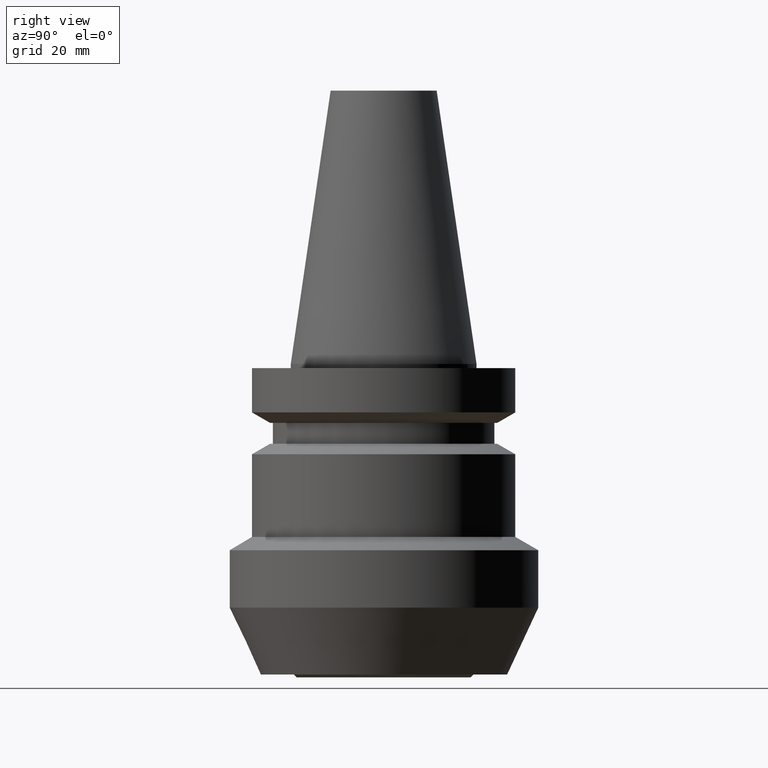
[diagram: clean part render]
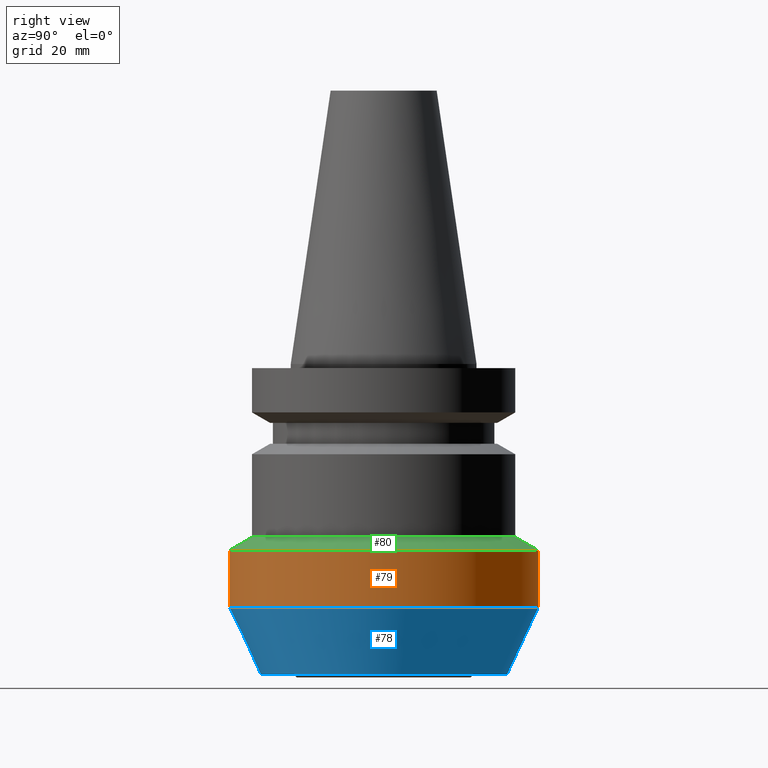
[diagram: same view with three faces highlighted in distinct colors, each labeled with its STEP entity id]
A machine part, right view with three faces highlighted in distinct colors.
Their STEP definitions:

[orange] entity #79 — the highlighted cylindrical surface (bore or boss wall) has radius 37 mm, axis along (0, 0, -1).
#79=ADVANCED_FACE('',(#104,#105),#106,.T.);
#104=FACE_BOUND('',#153,.T.);
#105=FACE_BOUND('',#154,.T.);
#106=CYLINDRICAL_SURFACE('',#155,37.0000000000031);
#153=EDGE_LOOP('',(#210));
#154=EDGE_LOOP('',(#211));
#155=AXIS2_PLACEMENT_3D('',#212,#213,#214);
#210=ORIENTED_EDGE('',*,*,#278,.F.);
#211=ORIENTED_EDGE('',*,*,#277,.T.);
#212=CARTESIAN_POINT('',(3.14979960878464E-015,1.17003556009431E-015,-51.4401313256631));
#213=DIRECTION('',(6.12323399573677E-017,2.27455787911362E-017,-1.0));
#214=DIRECTION('',(-6.21991774383436E-033,1.0,2.27455787911362E-017));
#277=EDGE_CURVE('',#296,#296,#297,.T.);
#278=EDGE_CURVE('',#298,#298,#299,.T.);
#296=VERTEX_POINT('',#328);
#297=CIRCLE('',#329,37.0000000000041);
#298=VERTEX_POINT('',#330);
#299=CIRCLE('',#331,37.0000000000021);
#328=CARTESIAN_POINT('',(3.57080847755333E-015,37.0000000000041,-58.3157279313426));
#329=AXIS2_PLACEMENT_3D('',#363,#364,#365);
#330=CARTESIAN_POINT('',(2.72879074001595E-015,37.0000000000021,-44.5645347199835));
#331=AXIS2_PLACEMENT_3D('',#366,#367,#368);
#363=CARTESIAN_POINT('',(3.57080847755333E-015,1.32642498442487E-015,-58.3157279313426));
#364=DIRECTION('',(-6.12323399573676E-017,-2.27455787911356E-017,1.0));
#365=DIRECTION('',(-6.21991774383418E-033,1.0,2.27455787911356E-017));
#366=CARTESIAN_POINT('',(2.72879074001595E-015,1.01364613576375E-015,-44.5645347199835));
#367=DIRECTION('',(-6.12323399573677E-017,-2.27455787911369E-017,1.0));
#368=DIRECTION('',(-6.21991774383453E-033,1.0,2.27455787911369E-017));

[blue] entity #78 — the highlighted conical surface has half-angle 25 deg.
#78=ADVANCED_FACE('',(#101,#102),#103,.T.);
#101=FACE_BOUND('',#150,.T.);
#102=FACE_BOUND('',#151,.T.);
#103=CONICAL_SURFACE('',#152,33.2731047821269,0.436332312998577);
#150=EDGE_LOOP('',(#205));
#151=EDGE_LOOP('',(#206));
#152=AXIS2_PLACEMENT_3D('',#207,#208,#209);
#205=ORIENTED_EDGE('',*,*,#277,.F.);
#206=ORIENTED_EDGE('',*,*,#276,.T.);
#207=CARTESIAN_POINT('',(4.06019892820447E-015,1.50821566991338E-015,-66.3080805180944));
#208=DIRECTION('',(-6.12323399573677E-017,-2.27455787911278E-017,1.0));
#209=DIRECTION('',(-6.21991774382596E-033,1.0,2.27455787911278E-017));
#276=EDGE_CURVE('',#294,#294,#295,.T.);
#277=EDGE_CURVE('',#296,#296,#297,.T.);
#294=VERTEX_POINT('',#326);
#295=CIRCLE('',#327,29.5462095642497);
#296=VERTEX_POINT('',#328);
#297=CIRCLE('',#329,37.0000000000041);
#326=CARTESIAN_POINT('',(4.5495893788556E-015,29.5462095642497,-74.3004331048462));
#327=AXIS2_PLACEMENT_3D('',#360,#361,#362);
#328=CARTESIAN_POINT('',(3.57080847755333E-015,37.0000000000041,-58.3157279313426));
#329=AXIS2_PLACEMENT_3D('',#363,#364,#365);
#360=CARTESIAN_POINT('',(4.54958937885559E-015,1.69000635540189E-015,-74.3004331048462));
#361=DIRECTION('',(-6.12323399573677E-017,-2.27455787911181E-017,1.0));
#362=DIRECTION('',(-6.21991774383995E-033,1.0,2.2745578791118E-017));
#363=CARTESIAN_POINT('',(3.57080847755333E-015,1.32642498442487E-015,-58.3157279313426));
#364=DIRECTION('',(-6.12323399573676E-017,-2.27455787911356E-017,1.0));
#365=DIRECTION('',(-6.21991774383418E-033,1.0,2.27455787911356E-017));

[green] entity #80 — the highlighted conical surface has half-angle 60 deg.
#80=ADVANCED_FACE('',(#107,#108),#109,.T.);
#107=FACE_BOUND('',#156,.T.);
#108=FACE_BOUND('',#157,.T.);
#109=CONICAL_SURFACE('',#158,34.2500000000004,1.04719755119663);
#156=EDGE_LOOP('',(#215));
#157=EDGE_LOOP('',(#216));
#158=AXIS2_PLACEMENT_3D('',#217,#218,#219);
#215=ORIENTED_EDGE('',*,*,#279,.F.);
#216=ORIENTED_EDGE('',*,*,#278,.T.);
#217=CARTESIAN_POINT('',(2.63157134313278E-015,9.77532679159404E-016,-42.9768214797112));
#218=DIRECTION('',(6.12323399573677E-017,2.27455787911201E-017,-1.0));
#219=DIRECTION('',(-6.21991774384132E-033,1.0,2.27455787911201E-017));
#278=EDGE_CURVE('',#298,#298,#299,.T.);
#279=EDGE_CURVE('',#300,#300,#301,.T.);
#298=VERTEX_POINT('',#330);
#299=CIRCLE('',#331,37.0000000000021);
#300=VERTEX_POINT('',#332);
#301=CIRCLE('',#333,31.4999999999987);
#330=CARTESIAN_POINT('',(2.72879074001595E-015,37.0000000000021,-44.5645347199835));
#331=AXIS2_PLACEMENT_3D('',#366,#367,#368);
#332=CARTESIAN_POINT('',(2.53435194624961E-015,31.4999999999987,-41.3891082394388));
#333=AXIS2_PLACEMENT_3D('',#369,#370,#371);
#366=CARTESIAN_POINT('',(2.72879074001595E-015,1.01364613576375E-015,-44.5645347199835));
#367=DIRECTION('',(-6.12323399573677E-017,-2.27455787911369E-017,1.0));
#368=DIRECTION('',(-6.21991774383453E-033,1.0,2.27455787911369E-017));
#369=CARTESIAN_POINT('',(2.53435194624961E-015,9.41419222555051E-016,-41.3891082394388));
#370=DIRECTION('',(-6.12323399573677E-017,-2.27455787911003E-017,1.0));
#371=DIRECTION('',(-6.21991774383791E-033,1.0,2.27455787911003E-017));